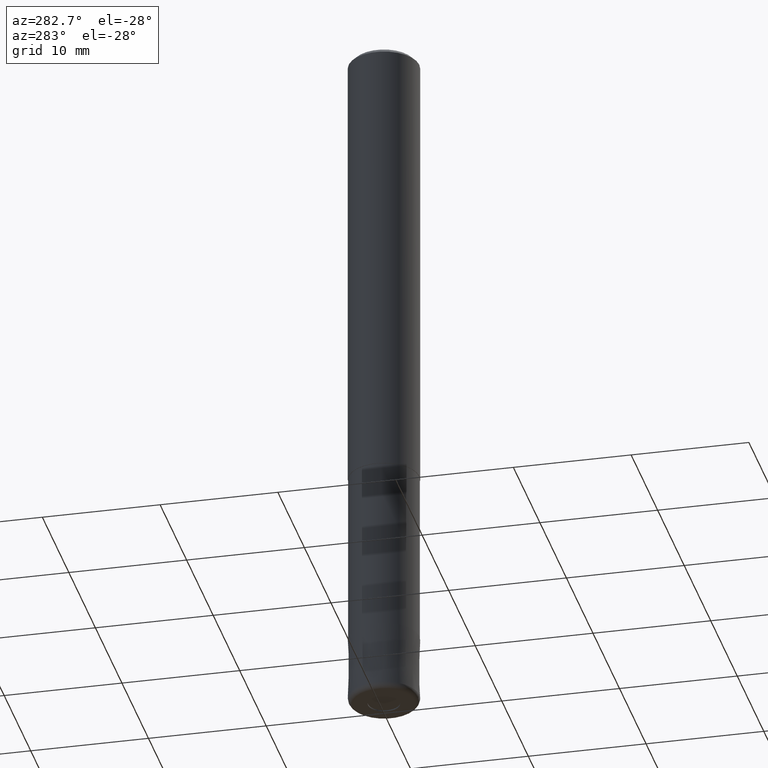
[diagram: clean part render]
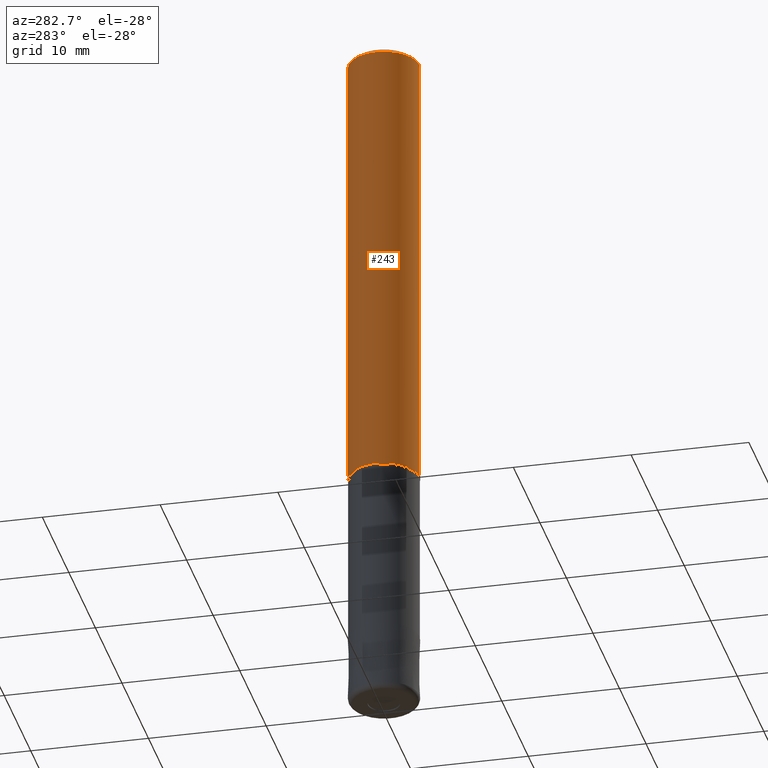
[diagram: same view with one face highlighted and labeled with its STEP entity id]
A machine part, auxiliary view. The second image highlights one B-rep face of the part: STEP entity #243.
In plain terms, the highlighted cylindrical surface (edge-blend (fillet) strip) has radius 3 mm, axis along (-0, -0, 1).
Its self-contained STEP definition (entity closure, byte-faithful):
#121=VERTEX_POINT('',#310);
#167=EDGE_CURVE('',#237,#201,#364,.T.);
#175=VERTEX_POINT('',#374);
#201=VERTEX_POINT('',#402);
#227=EDGE_CURVE('',#175,#121,#433,.T.);
#237=VERTEX_POINT('',#443);
#243=ADVANCED_FACE('',(#449),#450,.T.);
#261=EDGE_CURVE('',#121,#237,#469,.T.);
#279=EDGE_CURVE('',#175,#201,#490,.T.);
#310=CARTESIAN_POINT('',(3.67381906146713E-016,-3.0,-0.399999999999999));
#364=LINE('',#580,#581);
#374=CARTESIAN_POINT('',(3.67381906146713E-016,-3.0,-39.0));
#402=CARTESIAN_POINT('',(0.0,3.0,-39.0));
#433=LINE('',#665,#666);
#443=CARTESIAN_POINT('',(0.0,3.0,-0.399999999999999));
#449=FACE_OUTER_BOUND('',#684,.T.);
#450=CYLINDRICAL_SURFACE('',#685,3.0);
#469=CIRCLE('',#712,3.0);
#490=CIRCLE('',#741,3.0);
#580=CARTESIAN_POINT('',(-3.67381906146713E-016,3.0,-19.7));
#581=VECTOR('',#825,1.0);
#665=CARTESIAN_POINT('',(3.67381906146713E-016,-3.0,-19.7));
#666=VECTOR('',#929,1.0);
#684=EDGE_LOOP('',(#941,#942,#943,#944));
#685=AXIS2_PLACEMENT_3D('',#945,#946,#947);
#712=AXIS2_PLACEMENT_3D('',#967,#968,#969);
#741=AXIS2_PLACEMENT_3D('',#992,#993,#994);
#825=DIRECTION('',(0.0,0.0,-1.0));
#929=DIRECTION('',(-0.0,-0.0,1.0));
#941=ORIENTED_EDGE('',*,*,#167,.T.);
#942=ORIENTED_EDGE('',*,*,#279,.F.);
#943=ORIENTED_EDGE('',*,*,#227,.T.);
#944=ORIENTED_EDGE('',*,*,#261,.T.);
#945=CARTESIAN_POINT('',(0.0,0.0,-19.7));
#946=DIRECTION('',(-0.0,-0.0,1.0));
#947=DIRECTION('',(0.0,1.0,0.0));
#967=CARTESIAN_POINT('',(0.0,0.0,-0.399999999999999));
#968=DIRECTION('',(0.0,0.0,-1.0));
#969=DIRECTION('',(0.0,1.0,0.0));
#992=CARTESIAN_POINT('',(0.0,0.0,-39.0));
#993=DIRECTION('',(0.0,0.0,-1.0));
#994=DIRECTION('',(0.0,1.0,0.0));